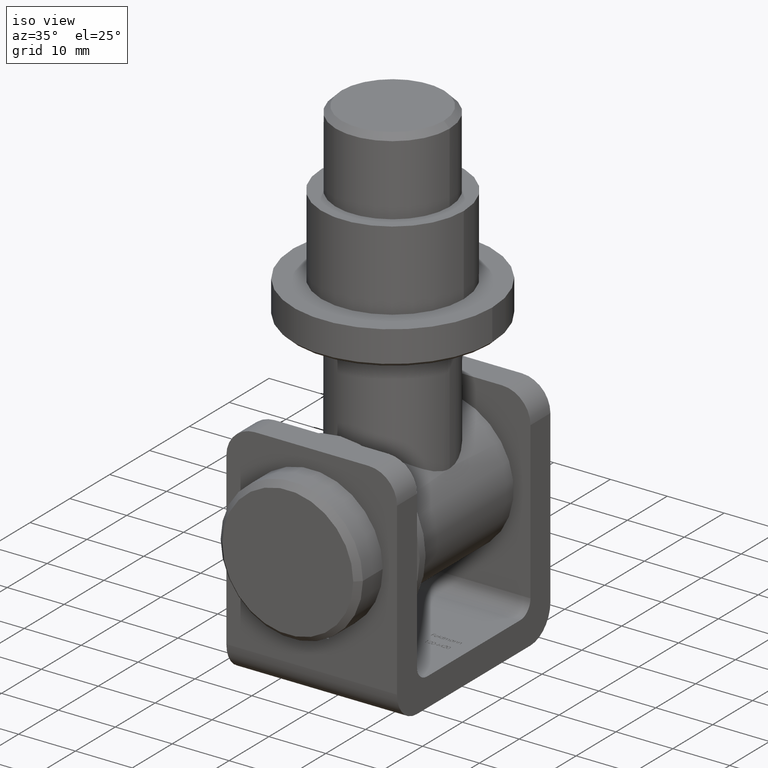
[diagram: clean part render]
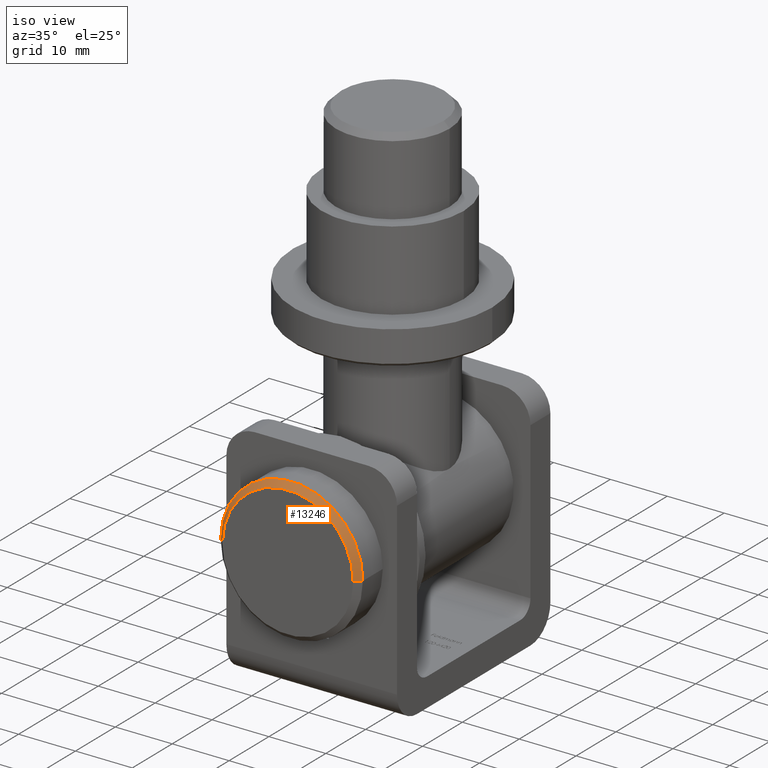
[diagram: same view with one face highlighted and labeled with its STEP entity id]
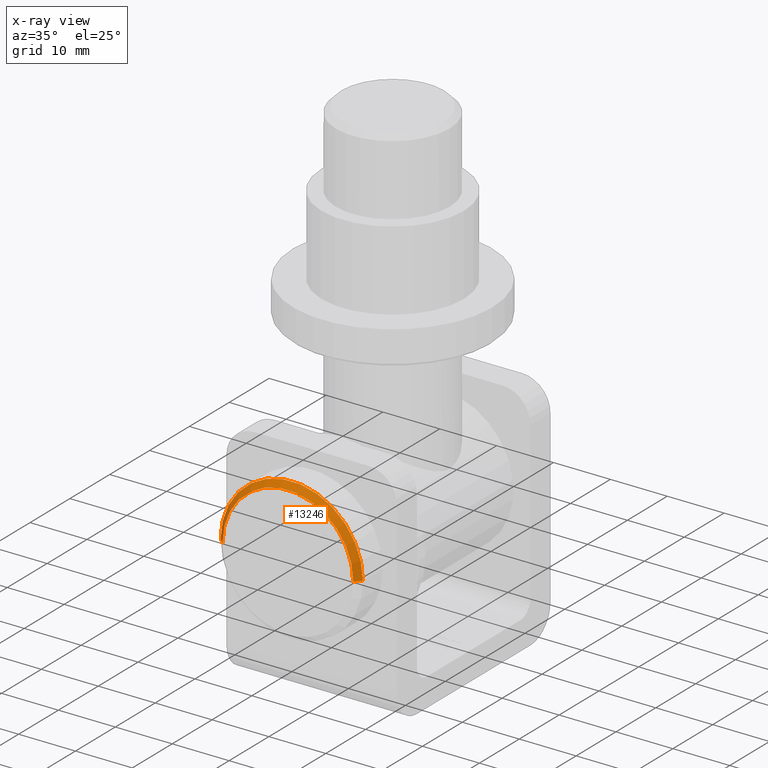
[diagram: x-ray of the same camera — body ghosted, the highlighted face saturated]
A machine part, iso view. The second image highlights one B-rep face of the part: STEP entity #13246.
The next image is the same camera in x-ray: the body ghosted, the highlighted face saturated — about 0% of this face is hidden behind the body in this view.
In plain terms, the highlighted conical surface has half-angle 45 deg.
Its self-contained STEP definition (entity closure, byte-faithful):
#193 = EDGE_LOOP ( 'NONE', ( #7094, #7522, #10454, #1690 ) ) ;
#565 = CIRCLE ( 'NONE', #3213, 11.49999999999999467 ) ;
#1239 = LINE ( 'NONE', #12778, #1632 ) ;
#1295 = AXIS2_PLACEMENT_3D ( 'NONE', #11911, #3255, #15524 ) ;
#1525 = CARTESIAN_POINT ( 'NONE',  ( -11.49999999999999467, -8.965986505048663067E-16, 0.000000000000000000 ) ) ;
#1632 = VECTOR ( 'NONE', #12887, 1000.000000000000000 ) ;
#1690 = ORIENTED_EDGE ( 'NONE', *, *, #3338, .F. ) ;
#1730 = CARTESIAN_POINT ( 'NONE',  ( 11.49999999999999467, 8.965986505048663067E-16, 1.469576158976823750E-15 ) ) ;
#2483 = AXIS2_PLACEMENT_3D ( 'NONE', #15734, #13287, #13231 ) ;
#2573 = CARTESIAN_POINT ( 'NONE',  ( 0.000000000000000000, 0.000000000000000000, 0.000000000000000000 ) ) ;
#2746 = CIRCLE ( 'NONE', #2483, 12.50000000000000000 ) ;
#3213 = AXIS2_PLACEMENT_3D ( 'NONE', #2573, #8842, #13937 ) ;
#3255 = DIRECTION ( 'NONE',  ( -7.796510004390117681E-17, 1.000000000000000000, -1.188857916638509797E-31 ) ) ;
#3338 = EDGE_CURVE ( 'NONE', #8797, #12263, #2746, .T. ) ;
#5769 = DIRECTION ( 'NONE',  ( -0.7071067811865493491, 0.7071067811865456854, -8.406494947223993489E-32 ) ) ;
#6026 = CARTESIAN_POINT ( 'NONE',  ( 12.50000000000000000, 1.000000000000001776, 1.530808498934196452E-15 ) ) ;
#7094 = ORIENTED_EDGE ( 'NONE', *, *, #9768, .F. ) ;
#7522 = ORIENTED_EDGE ( 'NONE', *, *, #7721, .F. ) ;
#7721 = EDGE_CURVE ( 'NONE', #11061, #11654, #565, .T. ) ;
#8797 = VERTEX_POINT ( 'NONE', #6026 ) ;
#8842 = DIRECTION ( 'NONE',  ( 7.796510004390144799E-17, -1.000000000000000000, 1.188857916638521183E-31 ) ) ;
#9142 = CONICAL_SURFACE ( 'NONE', #1295, 12.50000000000000000, 0.7853981633974509435 ) ;
#9768 = EDGE_CURVE ( 'NONE', #11654, #8797, #1239, .T. ) ;
#10454 = ORIENTED_EDGE ( 'NONE', *, *, #13349, .T. ) ;
#11061 = VERTEX_POINT ( 'NONE', #1525 ) ;
#11654 = VERTEX_POINT ( 'NONE', #1730 ) ;
#11911 = CARTESIAN_POINT ( 'NONE',  ( -7.796510004390163287E-17, 1.000000000000000888, 0.000000000000000000 ) ) ;
#12263 = VERTEX_POINT ( 'NONE', #13608 ) ;
#12778 = CARTESIAN_POINT ( 'NONE',  ( 12.50000000000000000, 1.000000000000001776, 1.530808498934191521E-15 ) ) ;
#12887 = DIRECTION ( 'NONE',  ( 0.7071067811865493491, 0.7071067811865456854, 8.659560562354946417E-17 ) ) ;
#13231 = DIRECTION ( 'NONE',  ( -1.000000000000000000, -6.938893903907228378E-17, 0.000000000000000000 ) ) ;
#13246 = ADVANCED_FACE ( 'NONE', ( #14796 ), #9142, .T. ) ;
#13287 = DIRECTION ( 'NONE',  ( -7.796510004390117681E-17, 1.000000000000000000, -1.188857916638509797E-31 ) ) ;
#13296 = CARTESIAN_POINT ( 'NONE',  ( -12.50000000000000000, 1.000000000000000000, 0.000000000000000000 ) ) ;
#13349 = EDGE_CURVE ( 'NONE', #11061, #12263, #14412, .T. ) ;
#13608 = CARTESIAN_POINT ( 'NONE',  ( -12.50000000000000000, 1.000000000000000000, 0.000000000000000000 ) ) ;
#13937 = DIRECTION ( 'NONE',  ( -1.000000000000000000, -7.796510004390144799E-17, 0.000000000000000000 ) ) ;
#14226 = VECTOR ( 'NONE', #5769, 1000.000000000000000 ) ;
#14412 = LINE ( 'NONE', #13296, #14226 ) ;
#14796 = FACE_OUTER_BOUND ( 'NONE', #193, .T. ) ;
#15524 = DIRECTION ( 'NONE',  ( -1.000000000000000000, -6.938893903907228378E-17, 0.000000000000000000 ) ) ;
#15734 = CARTESIAN_POINT ( 'NONE',  ( -7.796510004390163287E-17, 1.000000000000000888, 0.000000000000000000 ) ) ;